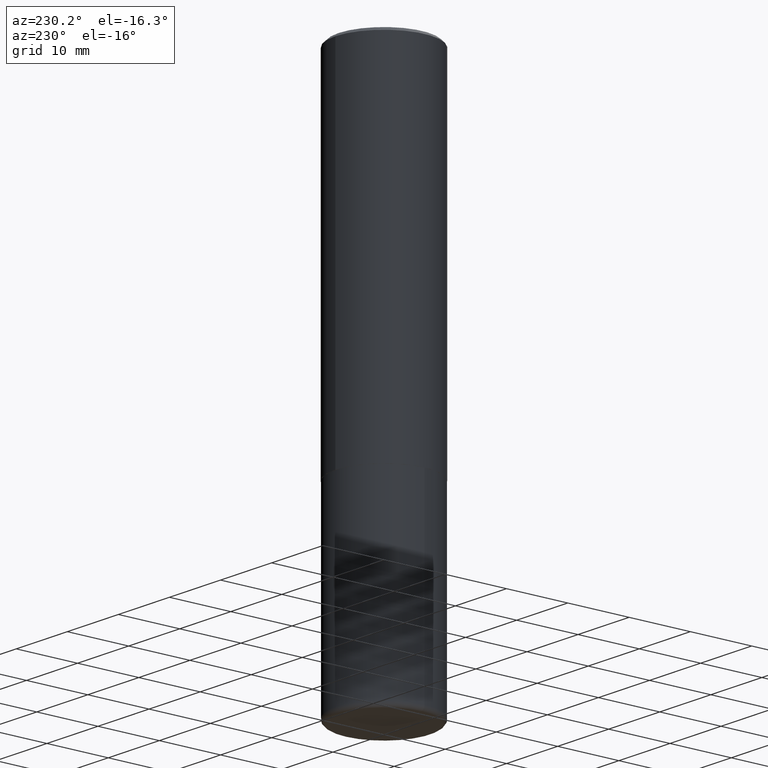
[diagram: clean part render]
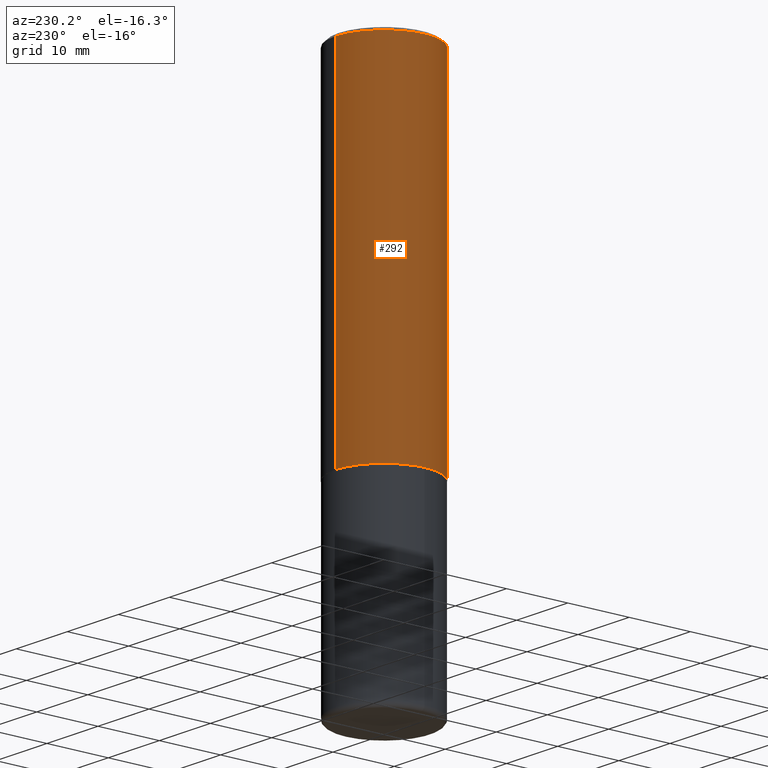
[diagram: same view with one face highlighted and labeled with its STEP entity id]
A machine part, auxiliary view. The second image highlights one B-rep face of the part: STEP entity #292.
In plain terms, the highlighted cylindrical surface (partial cylindrical patch) has radius 7.9375 mm, axis along (-0, 0, 1).
Its self-contained STEP definition (entity closure, byte-faithful):
#3 = DIRECTION ( 'NONE',  ( -2.445086907927291948E-29, 3.492028238884678069E-15, 1.000000000000000000 ) ) ;
#5 = CARTESIAN_POINT ( 'NONE',  ( 5.499000455928477404E-29, -7.853571509251639273E-15, -2.248999999999999222 ) ) ;
#8 = AXIS2_PLACEMENT_3D ( 'NONE', #121, #312, #146 ) ;
#45 = EDGE_CURVE ( 'NONE', #64, #58, #108, .T. ) ;
#58 = VERTEX_POINT ( 'NONE', #75 ) ;
#60 = EDGE_CURVE ( 'NONE', #64, #238, #281, .T. ) ;
#64 = VERTEX_POINT ( 'NONE', #79 ) ;
#75 = CARTESIAN_POINT ( 'NONE',  ( 2.182175836776957558E-15, 0.3124999999999998335, -0.02000000000000116268 ) ) ;
#77 = EDGE_CURVE ( 'NONE', #58, #220, #111, .T. ) ;
#79 = CARTESIAN_POINT ( 'NONE',  ( 2.220446049250341480E-15, 0.3124999999999924505, -2.249000000000000554 ) ) ;
#89 = AXIS2_PLACEMENT_3D ( 'NONE', #5, #390, #232 ) ;
#108 = LINE ( 'NONE', #227, #139 ) ;
#111 = CIRCLE ( 'NONE', #8, 0.3124999999999998890 ) ;
#121 = CARTESIAN_POINT ( 'NONE',  ( 4.890173815854600958E-31, -6.984056477769379656E-17, -0.02000000000000006981 ) ) ;
#137 = CARTESIAN_POINT ( 'NONE',  ( 0.000000000000000000, 0.000000000000000000, 0.000000000000000000 ) ) ;
#138 = DIRECTION ( 'NONE',  ( -6.982962677686266711E-15, -1.000000000000000000, 3.492028238884678463E-15 ) ) ;
#139 = VECTOR ( 'NONE', #360, 39.37007874015748143 ) ;
#146 = DIRECTION ( 'NONE',  ( -6.982962677686265133E-15, -1.000000000000000000, 3.496765431890258103E-15 ) ) ;
#149 = ORIENTED_EDGE ( 'NONE', *, *, #60, .T. ) ;
#152 = EDGE_CURVE ( 'NONE', #238, #220, #205, .T. ) ;
#168 = CARTESIAN_POINT ( 'NONE',  ( -2.182175836776958741E-15, -0.3125000000000000555, 1.091258824651462242E-15 ) ) ;
#204 = ORIENTED_EDGE ( 'NONE', *, *, #77, .F. ) ;
#205 = LINE ( 'NONE', #168, #269 ) ;
#220 = VERTEX_POINT ( 'NONE', #344 ) ;
#223 = ORIENTED_EDGE ( 'NONE', *, *, #45, .F. ) ;
#227 = CARTESIAN_POINT ( 'NONE',  ( 2.220446049250313081E-15, 0.3125000000000000555, -1.091258824651462242E-15 ) ) ;
#232 = DIRECTION ( 'NONE',  ( -6.982962677686265922E-15, -1.000000000000000000, 3.496765431890253764E-15 ) ) ;
#233 = FACE_OUTER_BOUND ( 'NONE', #405, .T. ) ;
#238 = VERTEX_POINT ( 'NONE', #278 ) ;
#261 = DIRECTION ( 'NONE',  ( -2.445086907927291668E-29, 3.492028238884678463E-15, 1.000000000000000000 ) ) ;
#269 = VECTOR ( 'NONE', #3, 39.37007874015748143 ) ;
#278 = CARTESIAN_POINT ( 'NONE',  ( -2.182175836776905099E-15, -0.3125000000000081601, -2.248999999999998334 ) ) ;
#281 = CIRCLE ( 'NONE', #89, 0.3125000000000002776 ) ;
#292 = ADVANCED_FACE ( 'NONE', ( #233 ), #331, .T. ) ;
#312 = DIRECTION ( 'NONE',  ( -2.445086907927291668E-29, 3.492028238884678463E-15, 1.000000000000000000 ) ) ;
#331 = CYLINDRICAL_SURFACE ( 'NONE', #336, 0.3125000000000000555 ) ;
#336 = AXIS2_PLACEMENT_3D ( 'NONE', #137, #261, #138 ) ;
#344 = CARTESIAN_POINT ( 'NONE',  ( -2.143905624303602036E-15, -0.3124999999999999445, -0.01999999999999897693 ) ) ;
#360 = DIRECTION ( 'NONE',  ( -2.445086907927291948E-29, 3.492028238884678069E-15, 1.000000000000000000 ) ) ;
#390 = DIRECTION ( 'NONE',  ( -2.445086907927291668E-29, 3.492028238884678463E-15, 1.000000000000000000 ) ) ;
#400 = ORIENTED_EDGE ( 'NONE', *, *, #152, .T. ) ;
#405 = EDGE_LOOP ( 'NONE', ( #223, #149, #400, #204 ) ) ;